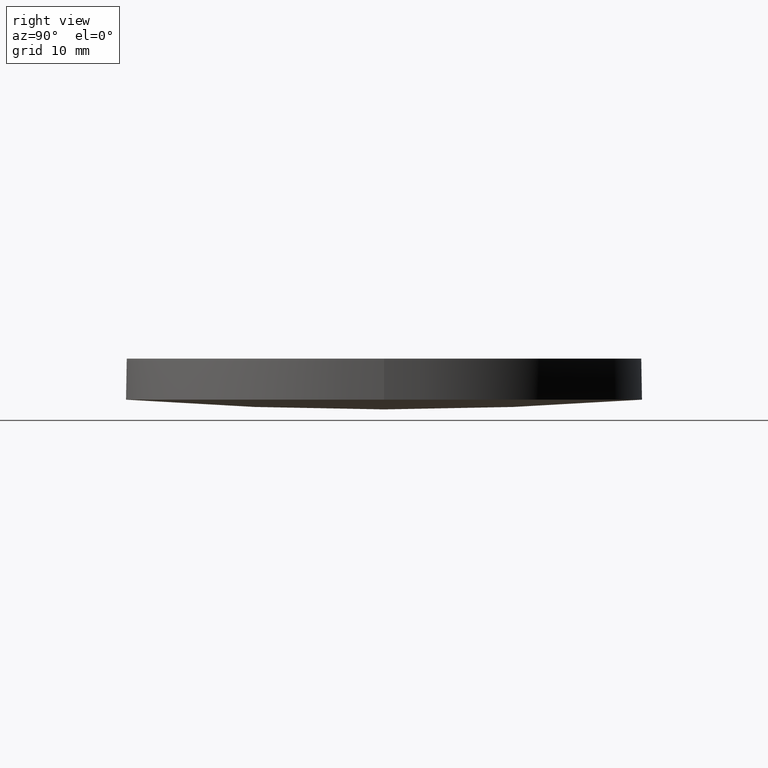
[diagram: clean part render]
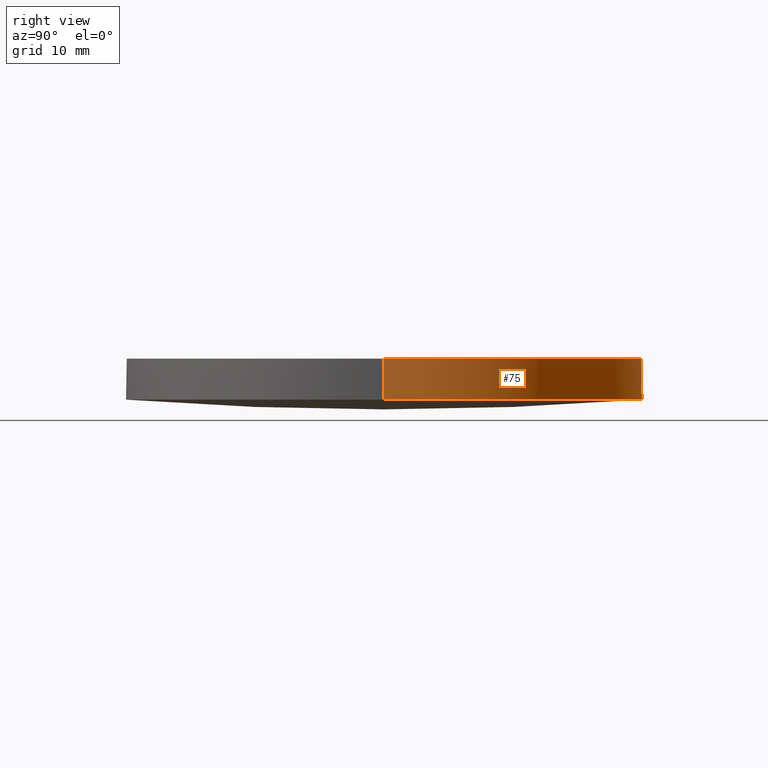
[diagram: same view with one face highlighted and labeled with its STEP entity id]
A machine part, right view. The second image highlights one B-rep face of the part: STEP entity #75.
In plain terms, the highlighted cylindrical surface (partial cylindrical patch) has radius 25.4 mm, axis along (0, 0, 1).
Its self-contained STEP definition (entity closure, byte-faithful):
#2 = DIRECTION ( 'NONE',  ( 0.0000000000000000000, 0.0000000000000000000, 1.000000000000000000 ) ) ;
#3 = VECTOR ( 'NONE', #109, 1000.000000000000000 ) ;
#7 = DIRECTION ( 'NONE',  ( -0.0000000000000000000, -0.0000000000000000000, -1.000000000000000000 ) ) ;
#11 = CIRCLE ( 'NONE', #179, 25.39999999999999900 ) ;
#18 = CARTESIAN_POINT ( 'NONE',  ( 25.39999999999999900, 4.884981308350691100E-015, 0.9580038127301360200 ) ) ;
#20 = VERTEX_POINT ( 'NONE', #99 ) ;
#26 = FACE_OUTER_BOUND ( 'NONE', #79, .T. ) ;
#31 = CARTESIAN_POINT ( 'NONE',  ( 9.992007221626412800E-016, 4.884981308350691100E-015, 0.9580038127301360200 ) ) ;
#34 = CIRCLE ( 'NONE', #106, 25.39999999999999900 ) ;
#35 = DIRECTION ( 'NONE',  ( 1.000000000000000000, 8.881784197001252300E-016, 0.0000000000000000000 ) ) ;
#36 = ORIENTED_EDGE ( 'NONE', *, *, #94, .F. ) ;
#41 = CARTESIAN_POINT ( 'NONE',  ( 9.992007221626412800E-016, 4.884981308350691100E-015, 0.9580038127301360200 ) ) ;
#43 = VERTEX_POINT ( 'NONE', #135 ) ;
#52 = ORIENTED_EDGE ( 'NONE', *, *, #196, .F. ) ;
#59 = CARTESIAN_POINT ( 'NONE',  ( 25.39999999999999900, 4.884981308350691100E-015, 0.9580038127301360200 ) ) ;
#61 = LINE ( 'NONE', #145, #3 ) ;
#64 = AXIS2_PLACEMENT_3D ( 'NONE', #178, #157, #35 ) ;
#65 = VERTEX_POINT ( 'NONE', #192 ) ;
#75 = ADVANCED_FACE ( 'NONE', ( #26 ), #176, .T. ) ;
#77 = EDGE_CURVE ( 'NONE', #43, #233, #220, .T. ) ;
#79 = EDGE_LOOP ( 'NONE', ( #52, #114, #227, #36, #223 ) ) ;
#86 = LINE ( 'NONE', #18, #173 ) ;
#94 = EDGE_CURVE ( 'NONE', #233, #20, #86, .T. ) ;
#99 = CARTESIAN_POINT ( 'NONE',  ( 25.39999999999999900, 4.884981308350691100E-015, 4.999999999999999100 ) ) ;
#104 = DIRECTION ( 'NONE',  ( -0.0000000000000000000, -0.0000000000000000000, -1.000000000000000000 ) ) ;
#106 = AXIS2_PLACEMENT_3D ( 'NONE', #183, #104, #216 ) ;
#107 = DIRECTION ( 'NONE',  ( 1.000000000000000000, 0.0000000000000000000, 0.0000000000000000000 ) ) ;
#109 = DIRECTION ( 'NONE',  ( 0.0000000000000000000, 0.0000000000000000000, 1.000000000000000000 ) ) ;
#114 = ORIENTED_EDGE ( 'NONE', *, *, #199, .T. ) ;
#117 = AXIS2_PLACEMENT_3D ( 'NONE', #31, #154, #137 ) ;
#120 = CARTESIAN_POINT ( 'NONE',  ( -25.39999999999999900, 7.995584178184967200E-015, 0.9580038127301360200 ) ) ;
#131 = EDGE_CURVE ( 'NONE', #65, #20, #34, .T. ) ;
#132 = VERTEX_POINT ( 'NONE', #120 ) ;
#135 = CARTESIAN_POINT ( 'NONE',  ( -9.486305939089213800E-014, 25.40000000000008700, 0.9580038127301410100 ) ) ;
#137 = DIRECTION ( 'NONE',  ( 1.000000000000000000, 0.0000000000000000000, 0.0000000000000000000 ) ) ;
#145 = CARTESIAN_POINT ( 'NONE',  ( -25.39999999999999900, 7.995584178184967200E-015, 0.9580038127301360200 ) ) ;
#154 = DIRECTION ( 'NONE',  ( 0.0000000000000000000, 0.0000000000000000000, 1.000000000000000000 ) ) ;
#157 = DIRECTION ( 'NONE',  ( -0.0000000000000000000, -0.0000000000000000000, -1.000000000000000000 ) ) ;
#173 = VECTOR ( 'NONE', #2, 1000.000000000000000 ) ;
#176 = CYLINDRICAL_SURFACE ( 'NONE', #117, 25.39999999999999900 ) ;
#178 = CARTESIAN_POINT ( 'NONE',  ( 9.992007221626412800E-016, 4.884981308350691100E-015, 0.9580038127301360200 ) ) ;
#179 = AXIS2_PLACEMENT_3D ( 'NONE', #41, #7, #107 ) ;
#183 = CARTESIAN_POINT ( 'NONE',  ( 9.992007221626412800E-016, 4.884981308350691100E-015, 4.999999999999999100 ) ) ;
#192 = CARTESIAN_POINT ( 'NONE',  ( -25.39999999999999900, 7.995584178184967200E-015, 4.999999999999999100 ) ) ;
#196 = EDGE_CURVE ( 'NONE', #132, #43, #11, .T. ) ;
#199 = EDGE_CURVE ( 'NONE', #132, #65, #61, .T. ) ;
#216 = DIRECTION ( 'NONE',  ( 1.000000000000000000, 0.0000000000000000000, 0.0000000000000000000 ) ) ;
#220 = CIRCLE ( 'NONE', #64, 25.39999999999999900 ) ;
#223 = ORIENTED_EDGE ( 'NONE', *, *, #77, .F. ) ;
#227 = ORIENTED_EDGE ( 'NONE', *, *, #131, .T. ) ;
#233 = VERTEX_POINT ( 'NONE', #59 ) ;